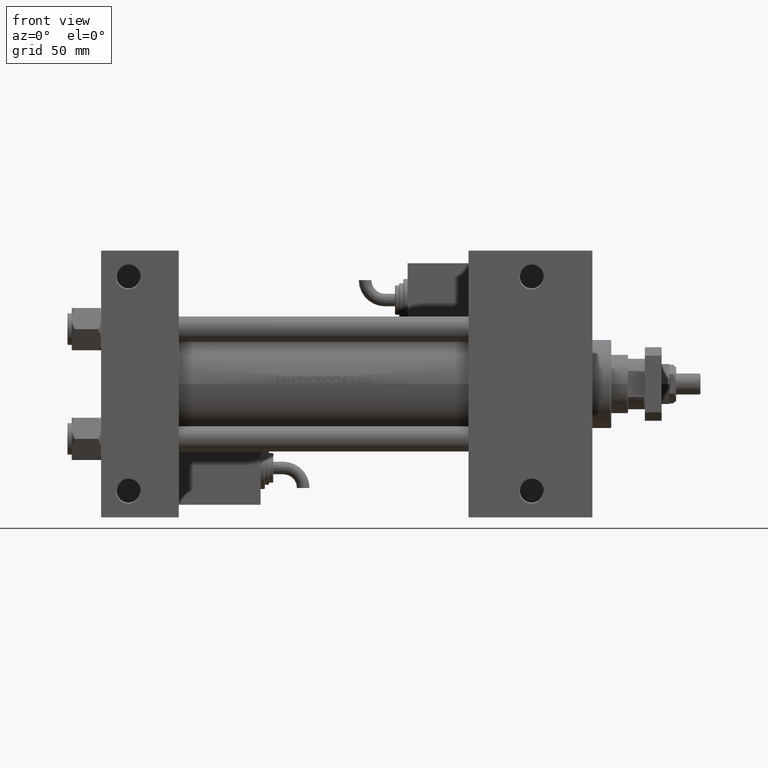
[diagram: clean part render]
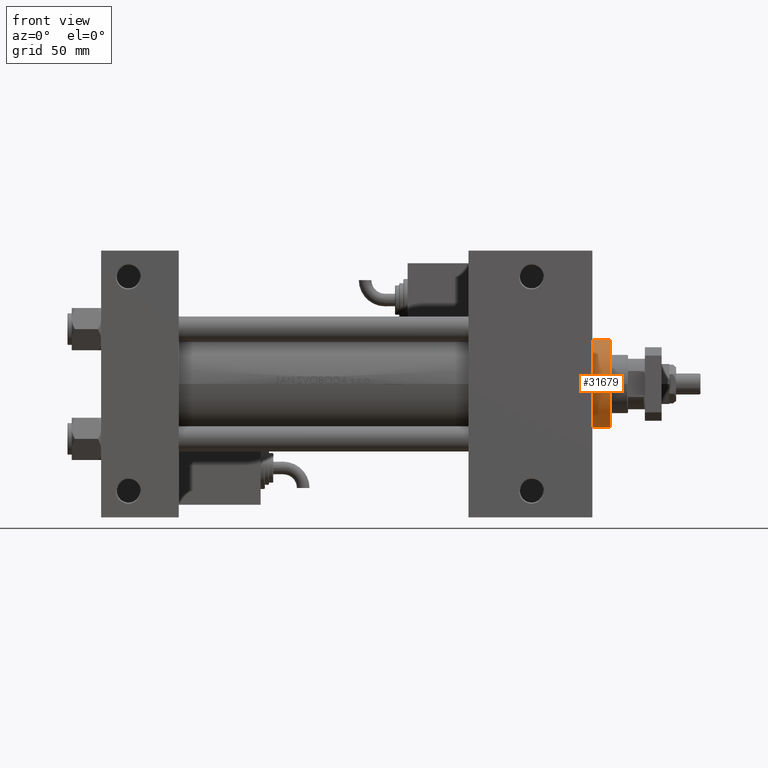
[diagram: same view with one face highlighted and labeled with its STEP entity id]
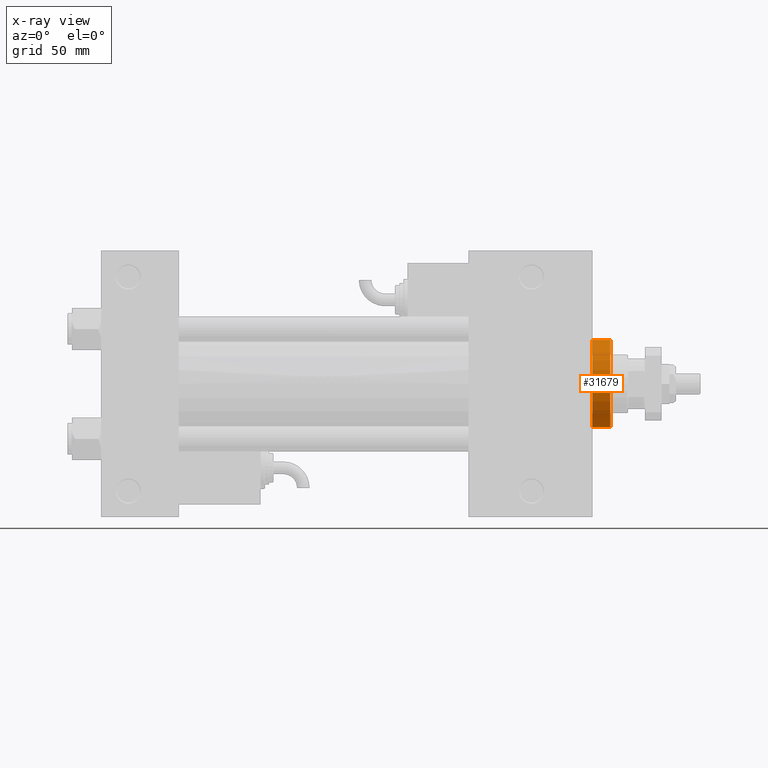
[diagram: x-ray of the same camera — body ghosted, the highlighted face saturated]
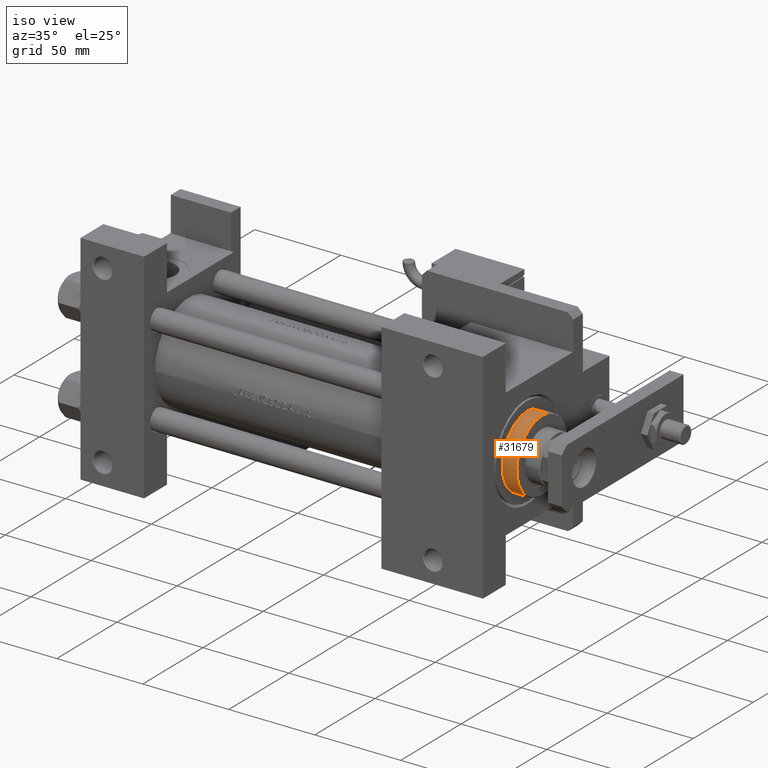
[diagram: same view with one face highlighted and labeled with its STEP entity id]
A machine part, front view. The second image highlights one B-rep face of the part: STEP entity #31679.
The next image is the same camera in x-ray: the body ghosted, the highlighted face saturated — about 0% of this face is hidden behind the body in this view.
A second angle (iso view) of the same face is appended — the face is thin or edge-on in the first view.
In plain terms, the highlighted cylindrical surface (partial cylindrical patch) has radius 21 mm, axis along (-1, 0, -0).
Its self-contained STEP definition (entity closure, byte-faithful):
#417 = CIRCLE ( 'NONE', #33941, 21.00000000000000000 ) ;
#1349 = DIRECTION ( 'NONE',  ( 1.000000000000000000, 0.000000000000000000, 0.000000000000000000 ) ) ;
#2044 = AXIS2_PLACEMENT_3D ( 'NONE', #2127, #17808, #1349 ) ;
#2127 = CARTESIAN_POINT ( 'NONE',  ( 0.000000000000000000, 0.000000000000000000, 28.69999999999999929 ) ) ;
#2814 = DIRECTION ( 'NONE',  ( 0.000000000000000000, 0.000000000000000000, -1.000000000000000000 ) ) ;
#3624 = CARTESIAN_POINT ( 'NONE',  ( 0.000000000000000000, 0.000000000000000000, 37.19999999999999574 ) ) ;
#6291 = CARTESIAN_POINT ( 'NONE',  ( -21.00000000000000000, 0.000000000000000000, 37.19999999999999574 ) ) ;
#6344 = CIRCLE ( 'NONE', #2044, 21.00000000000000000 ) ;
#7130 = DIRECTION ( 'NONE',  ( -1.000000000000000000, 0.000000000000000000, 0.000000000000000000 ) ) ;
#7137 = EDGE_LOOP ( 'NONE', ( #18096, #17865, #17926, #44543 ) ) ;
#7672 = CYLINDRICAL_SURFACE ( 'NONE', #42483, 21.00000000000000000 ) ;
#10397 = VERTEX_POINT ( 'NONE', #29945 ) ;
#14678 = DIRECTION ( 'NONE',  ( 1.000000000000000000, 0.000000000000000000, 0.000000000000000000 ) ) ;
#17808 = DIRECTION ( 'NONE',  ( 0.000000000000000000, 0.000000000000000000, 1.000000000000000000 ) ) ;
#17865 = ORIENTED_EDGE ( 'NONE', *, *, #26489, .T. ) ;
#17926 = ORIENTED_EDGE ( 'NONE', *, *, #34873, .T. ) ;
#18096 = ORIENTED_EDGE ( 'NONE', *, *, #36458, .T. ) ;
#19406 = VERTEX_POINT ( 'NONE', #35877 ) ;
#21694 = VECTOR ( 'NONE', #31630, 1000.000000000000000 ) ;
#23539 = CARTESIAN_POINT ( 'NONE',  ( -21.00000000000000000, 0.000000000000000000, 37.69999999999999574 ) ) ;
#24128 = CARTESIAN_POINT ( 'NONE',  ( 0.000000000000000000, 0.000000000000000000, 37.69999999999999574 ) ) ;
#26489 = EDGE_CURVE ( 'NONE', #40446, #19406, #47719, .T. ) ;
#28368 = EDGE_CURVE ( 'NONE', #38221, #10397, #35646, .T. ) ;
#29945 = CARTESIAN_POINT ( 'NONE',  ( -21.00000000000000000, 0.000000000000000000, 28.69999999999999929 ) ) ;
#31630 = DIRECTION ( 'NONE',  ( -0.000000000000000000, -0.000000000000000000, -1.000000000000000000 ) ) ;
#31679 = ADVANCED_FACE ( 'NONE', ( #44586 ), #7672, .T. ) ;
#32373 = CARTESIAN_POINT ( 'NONE',  ( 21.00000000000000000, 2.571758278209441661E-15, 37.69999999999999574 ) ) ;
#33941 = AXIS2_PLACEMENT_3D ( 'NONE', #3624, #2814, #14678 ) ;
#34873 = EDGE_CURVE ( 'NONE', #19406, #10397, #6344, .T. ) ;
#35646 = LINE ( 'NONE', #23539, #21694 ) ;
#35877 = CARTESIAN_POINT ( 'NONE',  ( 21.00000000000000000, 2.571758278209441661E-15, 28.69999999999999929 ) ) ;
#35965 = DIRECTION ( 'NONE',  ( -0.000000000000000000, -0.000000000000000000, -1.000000000000000000 ) ) ;
#36132 = DIRECTION ( 'NONE',  ( -0.000000000000000000, -0.000000000000000000, -1.000000000000000000 ) ) ;
#36458 = EDGE_CURVE ( 'NONE', #38221, #40446, #417, .T. ) ;
#38221 = VERTEX_POINT ( 'NONE', #6291 ) ;
#38877 = VECTOR ( 'NONE', #36132, 1000.000000000000000 ) ;
#40446 = VERTEX_POINT ( 'NONE', #50991 ) ;
#42483 = AXIS2_PLACEMENT_3D ( 'NONE', #24128, #35965, #7130 ) ;
#44543 = ORIENTED_EDGE ( 'NONE', *, *, #28368, .F. ) ;
#44586 = FACE_OUTER_BOUND ( 'NONE', #7137, .T. ) ;
#47719 = LINE ( 'NONE', #32373, #38877 ) ;
#50991 = CARTESIAN_POINT ( 'NONE',  ( 21.00000000000000000, 2.571758278209441661E-15, 37.19999999999999574 ) ) ;